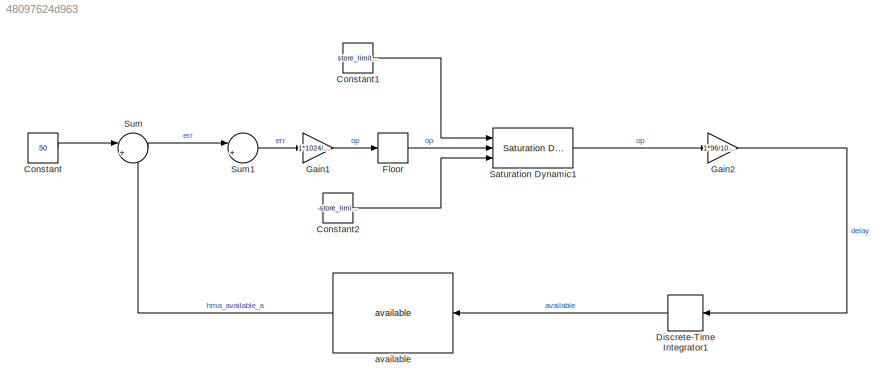
MODEL slx_48097624d963
KIND model
CONFIG AbsTol = auto
CONFIG EnableMultiTasking = off
CONFIG FixedStep = auto
CONFIG MaxStep = auto
CONFIG MinStep = auto
CONFIG RelTol = 1e-3
CONFIG SampleTimeConstraint = Unconstrained
CONFIG SolverName = VariableStepAuto
CONFIG StartTime = 0.0
CONFIG StopTime = 10000
WORKSPACE source: mxarray member
WORKSPACE influence_amp = 200
WORKSPACE store_limit = 50
BLOCK [Constant] Constant
  Value = 50
BLOCK [Constant] Constant1
  Value = store_limit/6
BLOCK [Constant] Constant2
  Value = -store_limit/6
BLOCK [DiscreteIntegrator] Discrete-Time Integrator1
  ICPrevOutput = DiscIntNeverNeededParam
  ICPrevScaledInput = DiscIntNeverNeededParam
  InitialCondition = 100
  InitialConditionSetting = Auto
  NameLocation = top
  Ports = [1, 1]
  SampleTime = 10
  gainval = 1
BLOCK [Rounding] Floor
BLOCK [Gain] Gain1
  Gain = 1*1024/(96*influence_amp)
  OutMax = [3]
  OutMin = [-3]
BLOCK [Gain] Gain2
  Gain = 1*96/1024
BLOCK [Reference] Saturation Dynamic1  REF=simulink/Discontinuities/Saturation
Dynamic
  Ports = [3, 1]
  SourceBlock = simulink/Discontinuities/Saturation\nDynamic
  SourceProductBaseCode = SL
  SourceType = Saturation Dynamic
BLOCK [Sum] Sum
  Inputs = |+-
  Ports = [2, 1]
BLOCK [Sum] Sum1
  Inputs = |+-
  Ports = [2, 1]
BLOCK [Reference] available  REF=pingcap/available  (lib defined in slx_86c26b565c1c)
  NameLocation = top
  Ports = [1, 3]
  SourceBlock = pingcap/available
LINE Constant1:1 -> Saturation Dynamic1:1
LINE Constant2:1 -> Saturation Dynamic1:3
LINE Constant:1 -> Sum:1
LINE Discrete-Time Integrator1:1 -> available:1
LINE Floor:1 -> Saturation Dynamic1:2
LINE Gain1:1 -> Floor:1
LINE Gain2:1 -> Discrete-Time Integrator1:1
LINE Saturation Dynamic1:1 -> Gain2:1
LINE Sum1:1 -> Gain1:1
LINE Sum:1 -> Sum1:1
LINE available:2 -> Sum:2
